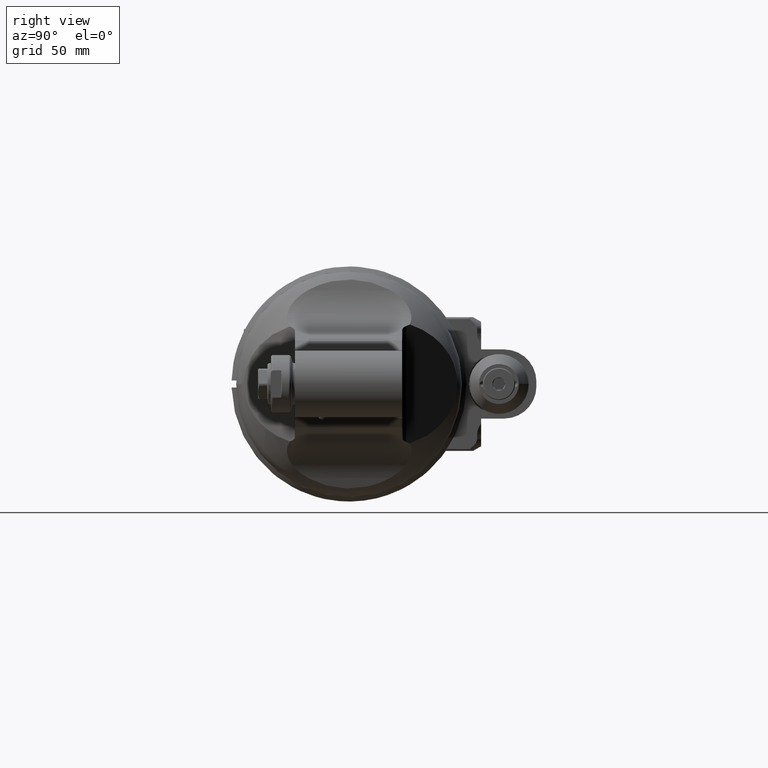
[diagram: clean part render]
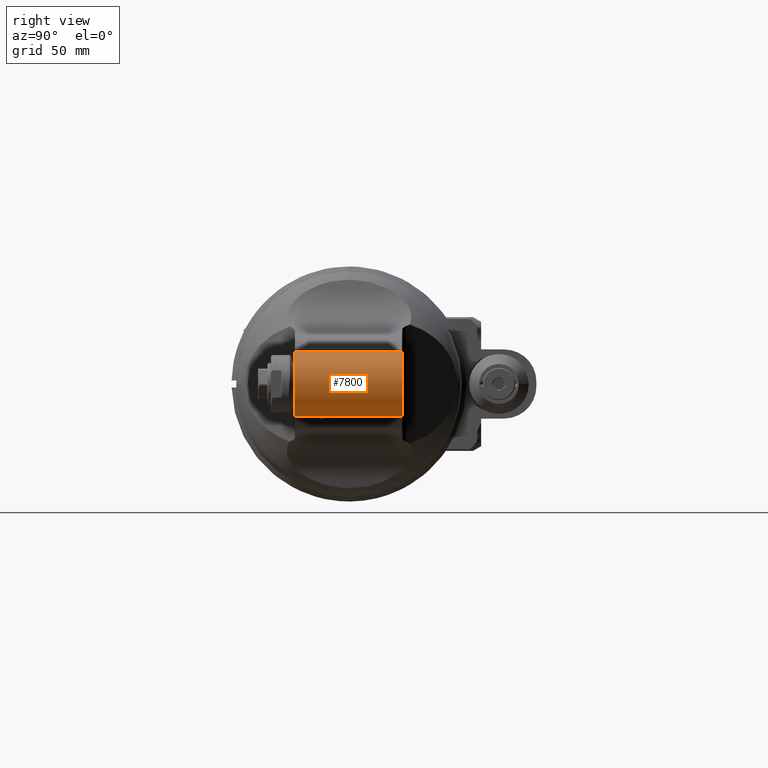
[diagram: same view with one face highlighted and labeled with its STEP entity id]
A machine part, right view. The second image highlights one B-rep face of the part: STEP entity #7800.
In plain terms, the highlighted cylindrical surface (edge-blend (fillet) strip) has radius 14.5 mm, axis along (-0, 1, 0).
Its self-contained STEP definition (entity closure, byte-faithful):
#474=CYLINDRICAL_SURFACE('',#8364,0.570866141732283);
#615=CIRCLE('',#8349,0.570866141732284);
#620=CIRCLE('',#8361,0.570866141732284);
#1011=FACE_OUTER_BOUND('',#1499,.T.);
#1499=EDGE_LOOP('',(#5269,#5270,#5271,#5272));
#2097=LINE('',#11739,#2669);
#2098=LINE('',#11741,#2670);
#2669=VECTOR('',#9320,1.83070866141732);
#2670=VECTOR('',#9323,1.83070866141732);
#3226=VERTEX_POINT('',#11620);
#3227=VERTEX_POINT('',#11622);
#3250=VERTEX_POINT('',#11731);
#3251=VERTEX_POINT('',#11733);
#4021=EDGE_CURVE('',#3226,#3227,#615,.T.);
#4051=EDGE_CURVE('',#3250,#3251,#620,.T.);
#4054=EDGE_CURVE('',#3226,#3251,#2097,.T.);
#4055=EDGE_CURVE('',#3250,#3227,#2098,.T.);
#5269=ORIENTED_EDGE('',*,*,#4021,.F.);
#5270=ORIENTED_EDGE('',*,*,#4054,.T.);
#5271=ORIENTED_EDGE('',*,*,#4051,.F.);
#5272=ORIENTED_EDGE('',*,*,#4055,.T.);
#7800=ADVANCED_FACE('',(#1011),#474,.T.);
#8349=AXIS2_PLACEMENT_3D('',#11623,#9270,#9271);
#8361=AXIS2_PLACEMENT_3D('',#11734,#9313,#9314);
#8364=AXIS2_PLACEMENT_3D('',#11740,#9321,#9322);
#9270=DIRECTION('center_axis',(0.,1.,0.));
#9271=DIRECTION('ref_axis',(0.258819045102493,0.,0.965925826289076));
#9313=DIRECTION('center_axis',(0.,-1.,0.));
#9314=DIRECTION('ref_axis',(0.258819045102493,0.,-0.965925826289076));
#9320=DIRECTION('',(0.,-1.,0.));
#9321=DIRECTION('center_axis',(0.,1.,0.));
#9322=DIRECTION('ref_axis',(1.,0.,1.22464679914735E-16));
#9323=DIRECTION('',(0.,1.,0.));
#11620=CARTESIAN_POINT('',(5.38397150212598,0.905511811023622,0.55141434965315));
#11622=CARTESIAN_POINT('',(5.38397150212598,0.905511811023622,-0.55141434965315));
#11623=CARTESIAN_POINT('Origin',(5.23622047244094,0.905511811023622,0.));
#11731=CARTESIAN_POINT('',(5.38397150212598,-0.925196850393701,-0.55141434965315));
#11733=CARTESIAN_POINT('',(5.38397150212598,-0.925196850393701,0.55141434965315));
#11734=CARTESIAN_POINT('Origin',(5.23622047244094,-0.925196850393701,0.));
#11739=CARTESIAN_POINT('',(5.38397150212598,0.905511811023622,0.55141434965315));
#11740=CARTESIAN_POINT('Origin',(5.23622047244094,-2.63590548737559,0.));
#11741=CARTESIAN_POINT('',(5.38397150212598,-0.925196850393701,-0.55141434965315));